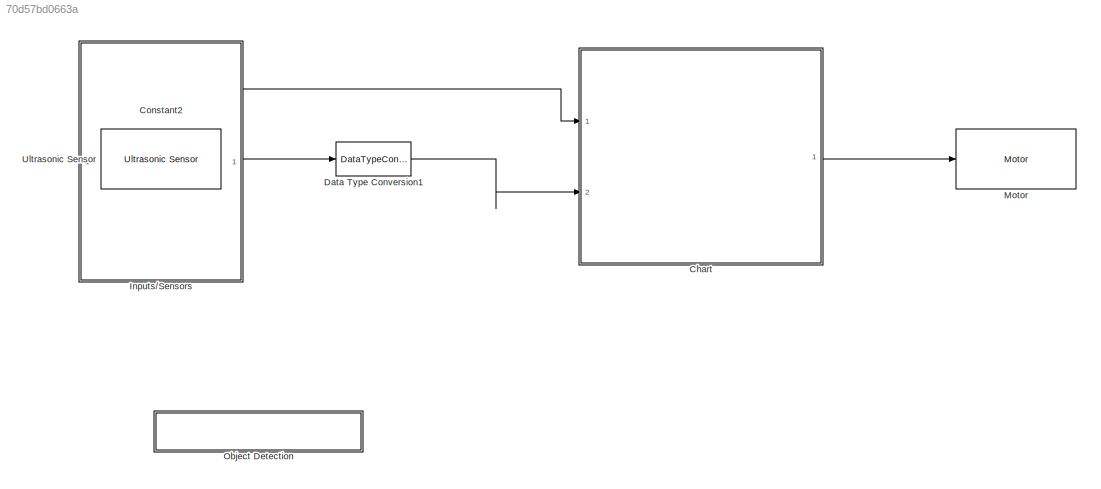
MODEL slx_70d57bd0663a
KIND model
CONFIG AbsTol = auto
CONFIG FixedStep = auto
CONFIG MaxStep = auto
CONFIG MinStep = auto
CONFIG RelTol = 1e-3
CONFIG SampleTimeConstraint = Unconstrained
CONFIG Solver = ode45
CONFIG SolverMode = Auto
CONFIG SolverName = ode45
CONFIG StartTime = 0.0
CONFIG StopTime = 10.0
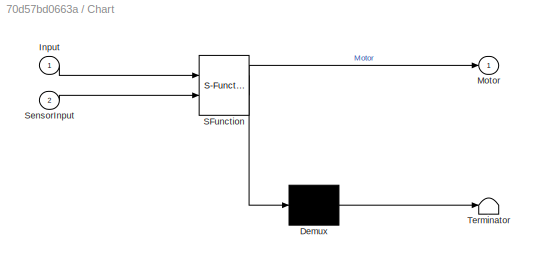
BLOCK [SubSystem] Chart
  ErrorFcn = Stateflow.Translate.translate
  PermitHierarchicalResolution = ExplicitOnly
  Ports = [2, 1]
  RequestExecContextInheritance = off
  SFBlockType = Chart
  TreatAsAtomicUnit = on
BLOCK [Demux] Chart/ Demux 
  Outputs = 1
  Ports = [1, 1]
BLOCK [S-Function] Chart/ SFunction 
  EnableBusSupport = on
  FunctionName = sf_sfun
  PortCounts = [2 2]
  Ports = [2, 2]
  Tag = Stateflow S-Function test1 3
BLOCK [Terminator] Chart/ Terminator 
BLOCK [Inport] Chart/Input
  IconDisplay = Port number
BLOCK [Outport] Chart/Motor
  IconDisplay = Port number
BLOCK [Inport] Chart/SensorInput
  IconDisplay = Port number
  Port = 2
BLOCK [Constant] Constant2
  Value = 20
BLOCK [DataTypeConversion] Data Type Conversion1
  RndMeth = Floor
  SaturateOnIntegerOverflow = off
BLOCK [SubSystem] Inputs//Sensors
  Ports = []
  RequestExecContextInheritance = off
BLOCK [Reference] Motor  REF=legoev3lib/Motor
  Ports = [1]
  SourceBlock = legoev3lib/Motor
  SourceType = LEGO MINDSTORMS EV3 Motor
  sportNumber = A
  sstopAction = Brake
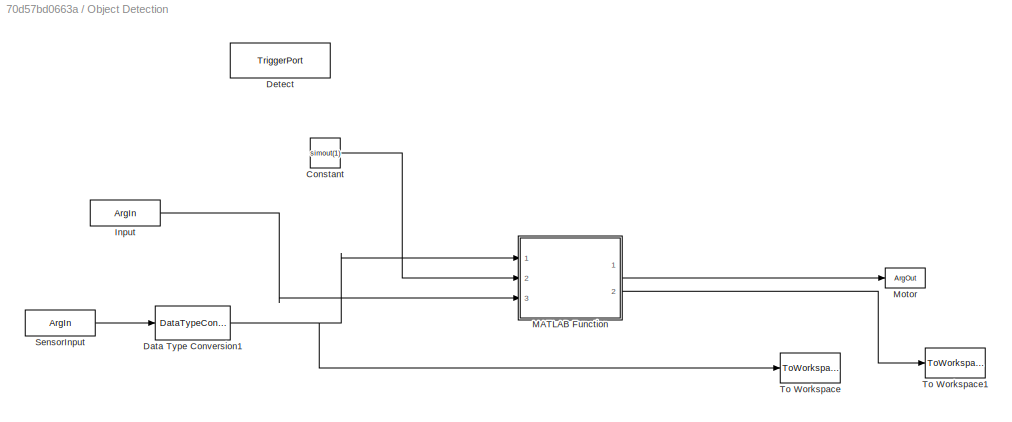
BLOCK [SubSystem] Object Detection
  Ports = [0, 0, 0, 1]
  RequestExecContextInheritance = off
  TreatAsAtomicUnit = on
BLOCK [Constant] Object Detection/Constant
  Value = simout(1)
BLOCK [DataTypeConversion] Object Detection/Data Type Conversion1
  RndMeth = Floor
  SaturateOnIntegerOverflow = off
BLOCK [TriggerPort] Object Detection/Detect
  FunctionName = Detect
  IsSimulinkFunction = on
  Ports = []
  StatesWhenEnabling = held
  TriggerType = function-call
BLOCK [ArgIn] Object Detection/Input
  ArgumentName = Input
  DisableCoverage = on
  Port = 2
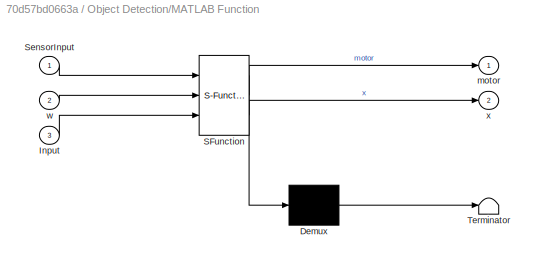
BLOCK [SubSystem] Object Detection/MATLAB Function
  ErrorFcn = Stateflow.Translate.translate
  PermitHierarchicalResolution = ExplicitOnly
  Ports = [3, 2]
  RequestExecContextInheritance = off
  SFBlockType = MATLAB Function
  TreatAsAtomicUnit = on
BLOCK [Demux] Object Detection/MATLAB Function/ Demux 
  Outputs = 1
  Ports = [1, 1]
BLOCK [S-Function] Object Detection/MATLAB Function/ SFunction 
  EnableBusSupport = on
  FunctionName = sf_sfun
  PortCounts = [3 3]
  Ports = [3, 3]
  Tag = Stateflow S-Function test1 2
BLOCK [Terminator] Object Detection/MATLAB Function/ Terminator 
BLOCK [Inport] Object Detection/MATLAB Function/Input
  IconDisplay = Port number
  Port = 3
BLOCK [Inport] Object Detection/MATLAB Function/SensorInput
  IconDisplay = Port number
BLOCK [Outport] Object Detection/MATLAB Function/motor
  IconDisplay = Port number
BLOCK [Inport] Object Detection/MATLAB Function/w
  IconDisplay = Port number
  Port = 2
BLOCK [Outport] Object Detection/MATLAB Function/x
  IconDisplay = Port number
  Port = 2
BLOCK [ArgOut] Object Detection/Motor
  ArgumentName = Motor
  DisableCoverage = on
BLOCK [ArgIn] Object Detection/SensorInput
  ArgumentName = SensorInput
  DisableCoverage = on
BLOCK [ToWorkspace] Object Detection/To Workspace
  FixptAsFi = on
  MaxDataPoints = inf
  Ports = [1]
  SampleTime = -1
  Save2DSignal = 3-D array (concatenate along third dimension)
  VariableName = simout
BLOCK [ToWorkspace] Object Detection/To Workspace1
  FixptAsFi = on
  MaxDataPoints = inf
  Ports = [1]
  SampleTime = -1
  Save2DSignal = 3-D array (concatenate along third dimension)
  SaveFormat = Timeseries
  VariableName = simout1
BLOCK [Reference] Ultrasonic Sensor  REF=legoev3lib/Ultrasonic Sensor
  PortNumber = 1
  Ports = [0, 1]
  SourceBlock = legoev3lib/Ultrasonic Sensor
  SourceType = LEGO MINDSTORMS EV3 Ultrasonic Sensor
  sampleTime = 0.01
LINE Chart:1 -> Motor:1
LINE Constant2:1 -> Chart:1
LINE Data Type Conversion1:1 -> Chart:2
LINE Object Detection/Constant:1 -> Object Detection/MATLAB Function:2
NET Object Detection/Data Type Conversion1:1 -> Object Detection/MATLAB Function:1, Object Detection/To Workspace:1
LINE Object Detection/Input:1 -> Object Detection/MATLAB Function:3
LINE Object Detection/MATLAB Function:1 -> Object Detection/Motor:1
LINE Object Detection/MATLAB Function:2 -> Object Detection/To Workspace1:1
LINE Object Detection/SensorInput:1 -> Object Detection/Data Type Conversion1:1
LINE Ultrasonic Sensor:1 -> Data Type Conversion1:1
note: NET lines group one-source signal fan-out (src -> all destinations, sorted); 1:1 wires keep LINE
CHART Object Detection/MATLAB Function states=1 transitions=1
  STATE_LABEL 'eML_blk_kernel()'
  STATE_LABEL 'SCRIPT:\nfunction [motor,x] = fcn(SensorInput,w,Input)\nx=w;\nif((SensorInput-x)>2)|| ((SensorInput-x)<-2)\n    motor = 0;\nelseif(SensorInput>4)&&(SensorInput<=20)\n    motor = Input;\nend\nend\n\n    \n\n'
CHART Chart states=0 transitions=2
